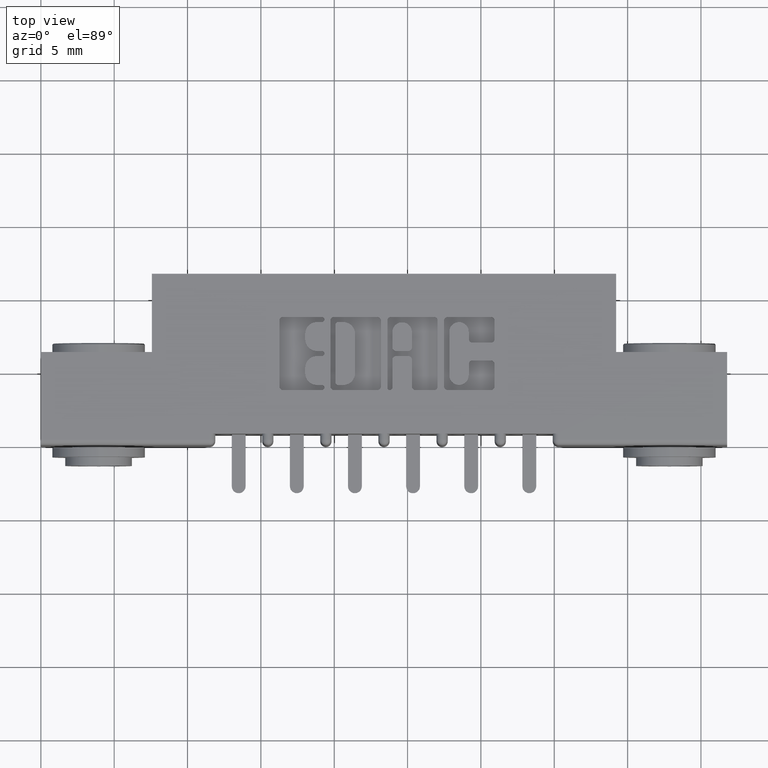
[diagram: clean part render]
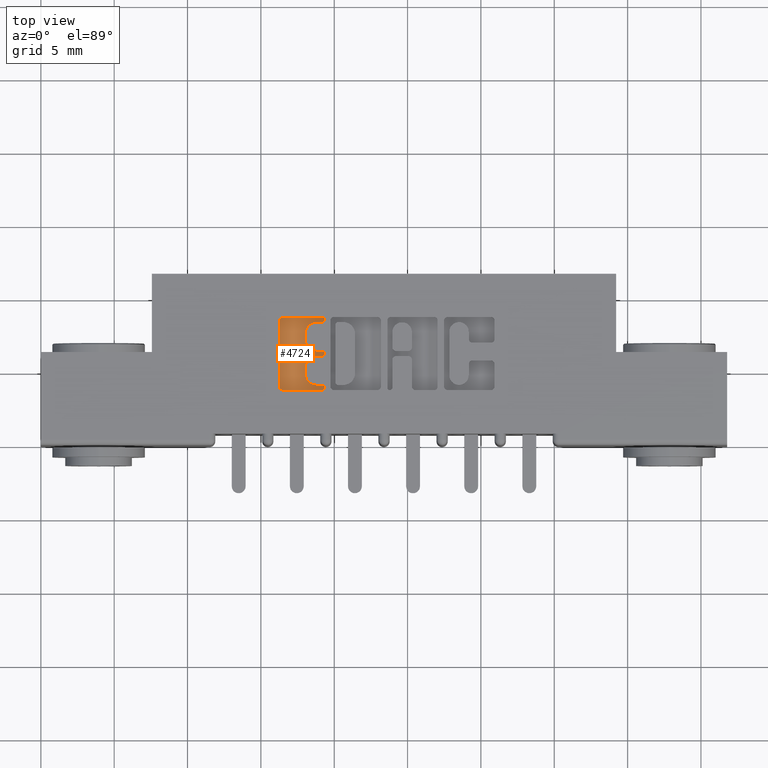
[diagram: same view with one face highlighted and labeled with its STEP entity id]
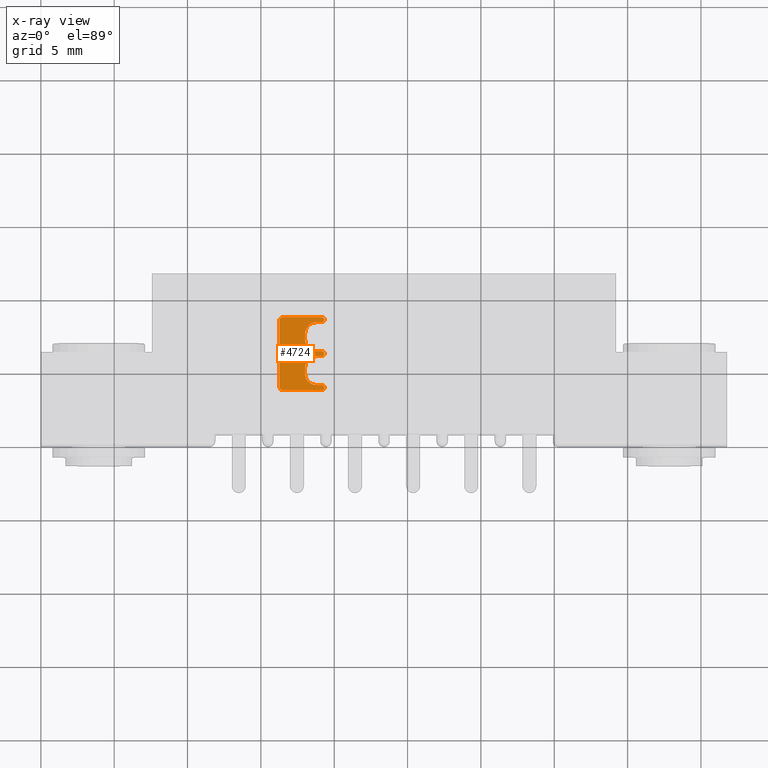
[diagram: x-ray of the same camera — body ghosted, the highlighted face saturated]
A machine part, top view. The second image highlights one B-rep face of the part: STEP entity #4724.
The next image is the same camera in x-ray: the body ghosted, the highlighted face saturated — about 0% of this face is hidden behind the body in this view.
In plain terms, the highlighted planar face has unit normal (0, 0, 1).
Its self-contained STEP definition (entity closure, byte-faithful):
#4 = CARTESIAN_POINT ( 'NONE',  ( 0.7406370600050843400, 0.2072188862052033700, -0.01000000000000000000 ) ) ;
#25 = CARTESIAN_POINT ( 'NONE',  ( 0.7406370600051257500, 0.2985046191005226200, -0.01000000000000000000 ) ) ;
#37 = AXIS2_PLACEMENT_3D ( 'NONE', #6745, #6734, #7523 ) ;
#87 = DIRECTION ( 'NONE',  ( 1.000000000000000000, 0.0000000000000000000, 0.0000000000000000000 ) ) ;
#175 = EDGE_LOOP ( 'NONE', ( #2856, #428, #979, #481, #1138, #2731, #660, #443, #927, #2683, #5513, #5664, #6516, #6629, #7619, #7629, #7959, #8506, #8806, #8875, #8930 ) ) ;
#220 = VERTEX_POINT ( 'NONE', #10408 ) ;
#404 = EDGE_CURVE ( 'NONE', #4750, #2591, #785, .T. ) ;
#428 = ORIENTED_EDGE ( 'NONE', *, *, #3231, .T. ) ;
#442 = LINE ( 'NONE', #10105, #9573 ) ;
#443 = ORIENTED_EDGE ( 'NONE', *, *, #2309, .T. ) ;
#449 = DIRECTION ( 'NONE',  ( 1.000000000000000000, 0.0000000000000000000, 0.0000000000000000000 ) ) ;
#481 = ORIENTED_EDGE ( 'NONE', *, *, #11212, .T. ) ;
#660 = ORIENTED_EDGE ( 'NONE', *, *, #4938, .T. ) ;
#662 = VERTEX_POINT ( 'NONE', #9259 ) ;
#759 = LINE ( 'NONE', #3002, #5575 ) ;
#785 = CIRCLE ( 'NONE', #6335, 0.009815670203822599700 ) ;
#927 = ORIENTED_EDGE ( 'NONE', *, *, #4510, .T. ) ;
#979 = ORIENTED_EDGE ( 'NONE', *, *, #9527, .T. ) ;
#1120 = DIRECTION ( 'NONE',  ( 1.000000000000000000, 0.0000000000000000000, 0.0000000000000000000 ) ) ;
#1138 = ORIENTED_EDGE ( 'NONE', *, *, #8624, .T. ) ;
#1214 = VECTOR ( 'NONE', #7114, 39.37007874015748100 ) ;
#1305 = VECTOR ( 'NONE', #8168, 39.37007874015748100 ) ;
#1360 = DIRECTION ( 'NONE',  ( 1.000000000000000000, 0.0000000000000000000, 0.0000000000000000000 ) ) ;
#1408 = CARTESIAN_POINT ( 'NONE',  ( 0.6498421106199383500, 0.3338410318342129300, -0.01000000000000000000 ) ) ;
#1412 = CARTESIAN_POINT ( 'NONE',  ( 0.7406370600050843400, 0.2386290308573596500, -0.01000000000000000000 ) ) ;
#1448 = DIRECTION ( 'NONE',  ( -0.0000000000000000000, 0.0000000000000000000, 1.000000000000000000 ) ) ;
#1507 = CIRCLE ( 'NONE', #5170, 0.006870969142663458500 ) ;
#1647 = VERTEX_POINT ( 'NONE', #10350 ) ;
#1792 = VERTEX_POINT ( 'NONE', #10922 ) ;
#1926 = DIRECTION ( 'NONE',  ( -0.0000000000000000000, 0.0000000000000000000, 1.000000000000000000 ) ) ;
#2040 = VERTEX_POINT ( 'NONE', #10413 ) ;
#2158 = AXIS2_PLACEMENT_3D ( 'NONE', #6798, #6718, #6706 ) ;
#2221 = AXIS2_PLACEMENT_3D ( 'NONE', #3926, #5661, #9152 ) ;
#2226 = CIRCLE ( 'NONE', #9767, 0.006870969142663458500 ) ;
#2309 = EDGE_CURVE ( 'NONE', #220, #2916, #3543, .T. ) ;
#2352 = LINE ( 'NONE', #4163, #10763 ) ;
#2587 = CARTESIAN_POINT ( 'NONE',  ( 0.7610045756779999500, 0.3367857328953891000, -0.01000000000000000000 ) ) ;
#2591 = VERTEX_POINT ( 'NONE', #3785 ) ;
#2683 = ORIENTED_EDGE ( 'NONE', *, *, #9965, .T. ) ;
#2701 = CARTESIAN_POINT ( 'NONE',  ( 0.7092269153529097100, 0.0000000000000000000, -0.01000000000000000000 ) ) ;
#2704 = AXIS2_PLACEMENT_3D ( 'NONE', #7245, #1926, #8013 ) ;
#2731 = ORIENTED_EDGE ( 'NONE', *, *, #404, .T. ) ;
#2797 = DIRECTION ( 'NONE',  ( 0.0000000000000000000, 1.000000000000000000, -0.0000000000000000000 ) ) ;
#2856 = ORIENTED_EDGE ( 'NONE', *, *, #6045, .F. ) ;
#2869 = CARTESIAN_POINT ( 'NONE',  ( 0.7406370600051098700, 0.1610852362473114100, -0.01000000000000000000 ) ) ;
#2890 = CARTESIAN_POINT ( 'NONE',  ( 0.7406370600051257500, 0.3299147637527385400, -0.01000000000000000000 ) ) ;
#2916 = VERTEX_POINT ( 'NONE', #10704 ) ;
#3002 = CARTESIAN_POINT ( 'NONE',  ( -1.915567620543394800E-014, 0.1610852362472233500, -0.01000000000000000000 ) ) ;
#3231 = EDGE_CURVE ( 'NONE', #7783, #2040, #3763, .T. ) ;
#3254 = VERTEX_POINT ( 'NONE', #3973 ) ;
#3330 = CIRCLE ( 'NONE', #5289, 0.006870969142662229500 ) ;
#3380 = LINE ( 'NONE', #4545, #7594 ) ;
#3389 = FACE_OUTER_BOUND ( 'NONE', #175, .T. ) ;
#3423 = VERTEX_POINT ( 'NONE', #9588 ) ;
#3543 = CIRCLE ( 'NONE', #37, 0.009815670203805798900 ) ;
#3763 = LINE ( 'NONE', #10566, #5770 ) ;
#3785 = CARTESIAN_POINT ( 'NONE',  ( 0.6400264404161156700, 0.3338410318342129300, -0.01000000000000000000 ) ) ;
#3875 = LINE ( 'NONE', #8220, #10078 ) ;
#3926 = CARTESIAN_POINT ( 'NONE',  ( 0.0000000000000000000, 0.0000000000000000000, -0.01000000000000000000 ) ) ;
#3969 = VERTEX_POINT ( 'NONE', #5076 ) ;
#3973 = CARTESIAN_POINT ( 'NONE',  ( 0.7541336064154146000, 0.1610852362473130200, -0.01000000000000000000 ) ) ;
#4163 = CARTESIAN_POINT ( 'NONE',  ( 0.0000000000000000000, 0.3436567020380355600, -0.01000000000000000000 ) ) ;
#4235 = CIRCLE ( 'NONE', #2158, 0.03141014465218178200 ) ;
#4239 = DIRECTION ( 'NONE',  ( -1.000000000000000000, 0.0000000000000000000, 0.0000000000000000000 ) ) ;
#4510 = EDGE_CURVE ( 'NONE', #2916, #1792, #3875, .T. ) ;
#4545 = CARTESIAN_POINT ( 'NONE',  ( 0.0000000000000000000, 0.2386290308573596500, -0.01000000000000000000 ) ) ;
#4595 = VERTEX_POINT ( 'NONE', #1412 ) ;
#4724 = ADVANCED_FACE ( 'NONE', ( #3389 ), #8365, .T. ) ;
#4738 = VERTEX_POINT ( 'NONE', #10333 ) ;
#4750 = VERTEX_POINT ( 'NONE', #10046 ) ;
#4938 = EDGE_CURVE ( 'NONE', #2591, #220, #442, .T. ) ;
#5048 = VERTEX_POINT ( 'NONE', #7164 ) ;
#5076 = CARTESIAN_POINT ( 'NONE',  ( 0.7610045756779737500, 0.2455000000000231700, -0.01000000000000000000 ) ) ;
#5109 = AXIS2_PLACEMENT_3D ( 'NONE', #5146, #10735, #5965 ) ;
#5146 = CARTESIAN_POINT ( 'NONE',  ( 0.7541336065353357900, 0.1542142671046507800, -0.01000000000000000000 ) ) ;
#5170 = AXIS2_PLACEMENT_3D ( 'NONE', #10646, #5880, #87 ) ;
#5244 = VERTEX_POINT ( 'NONE', #2869 ) ;
#5289 = AXIS2_PLACEMENT_3D ( 'NONE', #5507, #5486, #5482 ) ;
#5482 = DIRECTION ( 'NONE',  ( 1.000000000000000000, 0.0000000000000000000, 0.0000000000000000000 ) ) ;
#5485 = CIRCLE ( 'NONE', #9247, 0.006870969142648433200 ) ;
#5486 = DIRECTION ( 'NONE',  ( -0.0000000000000000000, 0.0000000000000000000, 1.000000000000000000 ) ) ;
#5507 = CARTESIAN_POINT ( 'NONE',  ( 0.7541336065353357900, 0.1542142671046507800, -0.01000000000000000000 ) ) ;
#5513 = ORIENTED_EDGE ( 'NONE', *, *, #7605, .T. ) ;
#5526 = CARTESIAN_POINT ( 'NONE',  ( 0.7541336065353515500, 0.3367857328953891000, -0.01000000000000000000 ) ) ;
#5575 = VECTOR ( 'NONE', #9413, 39.37007874015748100 ) ;
#5661 = DIRECTION ( 'NONE',  ( -0.0000000000000000000, 0.0000000000000000000, 1.000000000000000000 ) ) ;
#5664 = ORIENTED_EDGE ( 'NONE', *, *, #6976, .T. ) ;
#5770 = VECTOR ( 'NONE', #449, 39.37007874015748100 ) ;
#5880 = DIRECTION ( 'NONE',  ( -0.0000000000000000000, 0.0000000000000000000, 1.000000000000000000 ) ) ;
#5965 = DIRECTION ( 'NONE',  ( 1.000000000000000000, 0.0000000000000000000, 0.0000000000000000000 ) ) ;
#6045 = EDGE_CURVE ( 'NONE', #7783, #6067, #7319, .T. ) ;
#6067 = VERTEX_POINT ( 'NONE', #10243 ) ;
#6305 = VERTEX_POINT ( 'NONE', #2587 ) ;
#6325 = EDGE_CURVE ( 'NONE', #662, #6067, #8956, .T. ) ;
#6335 = AXIS2_PLACEMENT_3D ( 'NONE', #1408, #1448, #1360 ) ;
#6338 = DIRECTION ( 'NONE',  ( 1.000000000000000000, 0.0000000000000000000, 0.0000000000000000000 ) ) ;
#6349 = AXIS2_PLACEMENT_3D ( 'NONE', #4, #6631, #1120 ) ;
#6354 = CARTESIAN_POINT ( 'NONE',  ( 0.0000000000000000000, 0.2523709691426866400, -0.01000000000000000000 ) ) ;
#6516 = ORIENTED_EDGE ( 'NONE', *, *, #7529, .F. ) ;
#6629 = ORIENTED_EDGE ( 'NONE', *, *, #10623, .T. ) ;
#6631 = DIRECTION ( 'NONE',  ( -0.0000000000000000000, 0.0000000000000000000, 1.000000000000000000 ) ) ;
#6706 = DIRECTION ( 'NONE',  ( 1.000000000000000000, 0.0000000000000000000, 0.0000000000000000000 ) ) ;
#6718 = DIRECTION ( 'NONE',  ( -0.0000000000000000000, 0.0000000000000000000, 1.000000000000000000 ) ) ;
#6734 = DIRECTION ( 'NONE',  ( -0.0000000000000000000, 0.0000000000000000000, 1.000000000000000000 ) ) ;
#6745 = CARTESIAN_POINT ( 'NONE',  ( 0.6498421106199224800, 0.1571589681657927500, -0.01000000000000000000 ) ) ;
#6798 = CARTESIAN_POINT ( 'NONE',  ( 0.7406370600051098700, 0.1924953808994932000, -0.01000000000000000000 ) ) ;
#6976 = EDGE_CURVE ( 'NONE', #3254, #5244, #759, .T. ) ;
#7045 = AXIS2_PLACEMENT_3D ( 'NONE', #25, #11205, #11009 ) ;
#7114 = DIRECTION ( 'NONE',  ( -1.000000000000000000, 0.0000000000000000000, 0.0000000000000000000 ) ) ;
#7164 = CARTESIAN_POINT ( 'NONE',  ( 0.7541336064153890700, 0.2386290308573596500, -0.01000000000000000000 ) ) ;
#7245 = CARTESIAN_POINT ( 'NONE',  ( 0.7541336065353515500, 0.3367857328953891000, -0.01000000000000000000 ) ) ;
#7265 = EDGE_CURVE ( 'NONE', #662, #10697, #10792, .T. ) ;
#7319 = CIRCLE ( 'NONE', #7045, 0.03141014465221592800 ) ;
#7471 = DIRECTION ( 'NONE',  ( 1.000000000000000000, 0.0000000000000000000, 0.0000000000000000000 ) ) ;
#7484 = EDGE_CURVE ( 'NONE', #3969, #7491, #2226, .T. ) ;
#7490 = DIRECTION ( 'NONE',  ( -0.0000000000000000000, 0.0000000000000000000, 1.000000000000000000 ) ) ;
#7491 = VERTEX_POINT ( 'NONE', #7543 ) ;
#7504 = CARTESIAN_POINT ( 'NONE',  ( 0.7541336065353102500, 0.2455000000000231700, -0.01000000000000000000 ) ) ;
#7523 = DIRECTION ( 'NONE',  ( 1.000000000000000000, 0.0000000000000000000, 0.0000000000000000000 ) ) ;
#7529 = EDGE_CURVE ( 'NONE', #3423, #5244, #4235, .T. ) ;
#7543 = CARTESIAN_POINT ( 'NONE',  ( 0.7541336065353102500, 0.2523709691426866400, -0.01000000000000000000 ) ) ;
#7594 = VECTOR ( 'NONE', #8549, 39.37007874015748100 ) ;
#7605 = EDGE_CURVE ( 'NONE', #1647, #3254, #3330, .T. ) ;
#7619 = ORIENTED_EDGE ( 'NONE', *, *, #10644, .F. ) ;
#7629 = ORIENTED_EDGE ( 'NONE', *, *, #10195, .T. ) ;
#7783 = VERTEX_POINT ( 'NONE', #2890 ) ;
#7959 = ORIENTED_EDGE ( 'NONE', *, *, #9188, .T. ) ;
#8013 = DIRECTION ( 'NONE',  ( 1.000000000000000000, 0.0000000000000000000, 0.0000000000000000000 ) ) ;
#8066 = LINE ( 'NONE', #11285, #1305 ) ;
#8168 = DIRECTION ( 'NONE',  ( 0.0000000000000000000, 1.000000000000000000, -0.0000000000000000000 ) ) ;
#8220 = CARTESIAN_POINT ( 'NONE',  ( -1.013135022034653000E-015, 0.1473432979619833400, -0.01000000000000000000 ) ) ;
#8243 = CARTESIAN_POINT ( 'NONE',  ( 0.7406370600050843400, 0.2523709691426866400, -0.01000000000000000000 ) ) ;
#8260 = LINE ( 'NONE', #6354, #1214 ) ;
#8318 = CIRCLE ( 'NONE', #2704, 0.006870969142648433200 ) ;
#8329 = CIRCLE ( 'NONE', #6349, 0.03141014465215624000 ) ;
#8335 = VERTEX_POINT ( 'NONE', #9178 ) ;
#8365 = PLANE ( 'NONE',  #2221 ) ;
#8506 = ORIENTED_EDGE ( 'NONE', *, *, #7484, .T. ) ;
#8549 = DIRECTION ( 'NONE',  ( 1.000000000000000000, 0.0000000000000000000, 0.0000000000000000000 ) ) ;
#8624 = EDGE_CURVE ( 'NONE', #8335, #4750, #2352, .T. ) ;
#8806 = ORIENTED_EDGE ( 'NONE', *, *, #8923, .T. ) ;
#8875 = ORIENTED_EDGE ( 'NONE', *, *, #7265, .F. ) ;
#8923 = EDGE_CURVE ( 'NONE', #7491, #10697, #8260, .T. ) ;
#8930 = ORIENTED_EDGE ( 'NONE', *, *, #6325, .T. ) ;
#8956 = LINE ( 'NONE', #2701, #11037 ) ;
#9152 = DIRECTION ( 'NONE',  ( 1.000000000000000000, 0.0000000000000000000, 0.0000000000000000000 ) ) ;
#9178 = CARTESIAN_POINT ( 'NONE',  ( 0.7541336065353515500, 0.3436567020380355600, -0.01000000000000000000 ) ) ;
#9188 = EDGE_CURVE ( 'NONE', #5048, #3969, #1507, .T. ) ;
#9247 = AXIS2_PLACEMENT_3D ( 'NONE', #5526, #11068, #6338 ) ;
#9259 = CARTESIAN_POINT ( 'NONE',  ( 0.7092269153529097100, 0.2837811137948611500, -0.01000000000000000000 ) ) ;
#9413 = DIRECTION ( 'NONE',  ( -1.000000000000000000, -1.189163988687022500E-013, 0.0000000000000000000 ) ) ;
#9527 = EDGE_CURVE ( 'NONE', #2040, #6305, #5485, .T. ) ;
#9573 = VECTOR ( 'NONE', #11288, 39.37007874015748100 ) ;
#9588 = CARTESIAN_POINT ( 'NONE',  ( 0.7092269153529280300, 0.1924953808994932000, -0.01000000000000000000 ) ) ;
#9767 = AXIS2_PLACEMENT_3D ( 'NONE', #7504, #7490, #7471 ) ;
#9965 = EDGE_CURVE ( 'NONE', #1792, #1647, #10950, .T. ) ;
#9972 = AXIS2_PLACEMENT_3D ( 'NONE', #10447, #10407, #10405 ) ;
#10046 = CARTESIAN_POINT ( 'NONE',  ( 0.6498421106199383500, 0.3436567020380355600, -0.01000000000000000000 ) ) ;
#10078 = VECTOR ( 'NONE', #11284, 39.37007874015748100 ) ;
#10105 = CARTESIAN_POINT ( 'NONE',  ( 0.6400264404161156700, 0.0000000000000000000, -0.01000000000000000000 ) ) ;
#10195 = EDGE_CURVE ( 'NONE', #4595, #5048, #3380, .T. ) ;
#10243 = CARTESIAN_POINT ( 'NONE',  ( 0.7092269153529097100, 0.2985046191005226200, -0.01000000000000000000 ) ) ;
#10333 = CARTESIAN_POINT ( 'NONE',  ( 0.7092269153529280300, 0.2072188862052033700, -0.01000000000000000000 ) ) ;
#10350 = CARTESIAN_POINT ( 'NONE',  ( 0.7610045756779980600, 0.1542142671046507800, -0.01000000000000000000 ) ) ;
#10405 = DIRECTION ( 'NONE',  ( 1.000000000000000000, 0.0000000000000000000, 0.0000000000000000000 ) ) ;
#10407 = DIRECTION ( 'NONE',  ( -0.0000000000000000000, 0.0000000000000000000, 1.000000000000000000 ) ) ;
#10408 = CARTESIAN_POINT ( 'NONE',  ( 0.6400264404161156700, 0.1571589681657927500, -0.01000000000000000000 ) ) ;
#10413 = CARTESIAN_POINT ( 'NONE',  ( 0.7541336065353516600, 0.3299147637527385400, -0.01000000000000000000 ) ) ;
#10447 = CARTESIAN_POINT ( 'NONE',  ( 0.7406370600050843400, 0.2837811137948611500, -0.01000000000000000000 ) ) ;
#10566 = CARTESIAN_POINT ( 'NONE',  ( 0.0000000000000000000, 0.3299147637527385400, -0.01000000000000000000 ) ) ;
#10623 = EDGE_CURVE ( 'NONE', #3423, #4738, #8066, .T. ) ;
#10644 = EDGE_CURVE ( 'NONE', #4595, #4738, #8329, .T. ) ;
#10646 = CARTESIAN_POINT ( 'NONE',  ( 0.7541336065353102500, 0.2455000000000231700, -0.01000000000000000000 ) ) ;
#10697 = VERTEX_POINT ( 'NONE', #8243 ) ;
#10704 = CARTESIAN_POINT ( 'NONE',  ( 0.6498421106199189200, 0.1473432979619878100, -0.01000000000000000000 ) ) ;
#10735 = DIRECTION ( 'NONE',  ( -0.0000000000000000000, 0.0000000000000000000, 1.000000000000000000 ) ) ;
#10763 = VECTOR ( 'NONE', #4239, 39.37007874015748100 ) ;
#10792 = CIRCLE ( 'NONE', #9972, 0.03141014465217454400 ) ;
#10922 = CARTESIAN_POINT ( 'NONE',  ( 0.7541336064154146000, 0.1473432979619885300, -0.01000000000000000000 ) ) ;
#10950 = CIRCLE ( 'NONE', #5109, 0.006870969142662229500 ) ;
#11009 = DIRECTION ( 'NONE',  ( 1.000000000000000000, 0.0000000000000000000, 0.0000000000000000000 ) ) ;
#11037 = VECTOR ( 'NONE', #2797, 39.37007874015748100 ) ;
#11068 = DIRECTION ( 'NONE',  ( -0.0000000000000000000, 0.0000000000000000000, 1.000000000000000000 ) ) ;
#11205 = DIRECTION ( 'NONE',  ( -0.0000000000000000000, 0.0000000000000000000, 1.000000000000000000 ) ) ;
#11212 = EDGE_CURVE ( 'NONE', #6305, #8335, #8318, .T. ) ;
#11284 = DIRECTION ( 'NONE',  ( 1.000000000000000000, 6.876017002796124400E-015, 0.0000000000000000000 ) ) ;
#11285 = CARTESIAN_POINT ( 'NONE',  ( 0.7092269153529280300, 0.0000000000000000000, -0.01000000000000000000 ) ) ;
#11288 = DIRECTION ( 'NONE',  ( 0.0000000000000000000, -1.000000000000000000, 0.0000000000000000000 ) ) ;